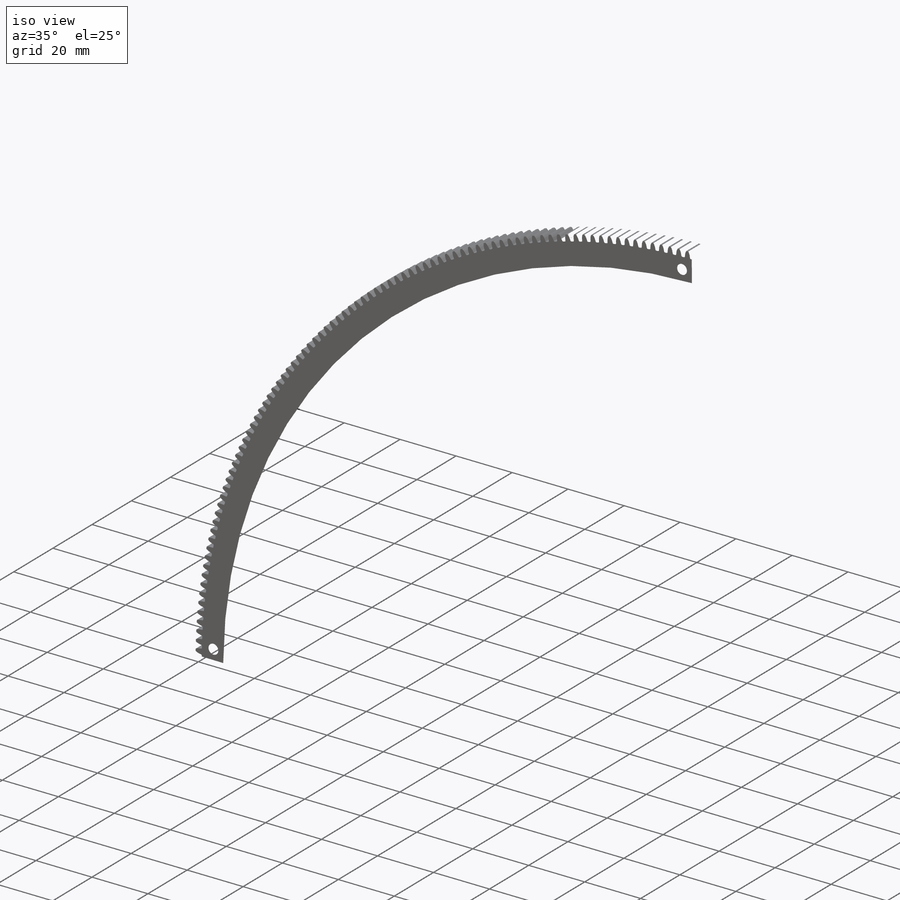
[diagram: iso view]
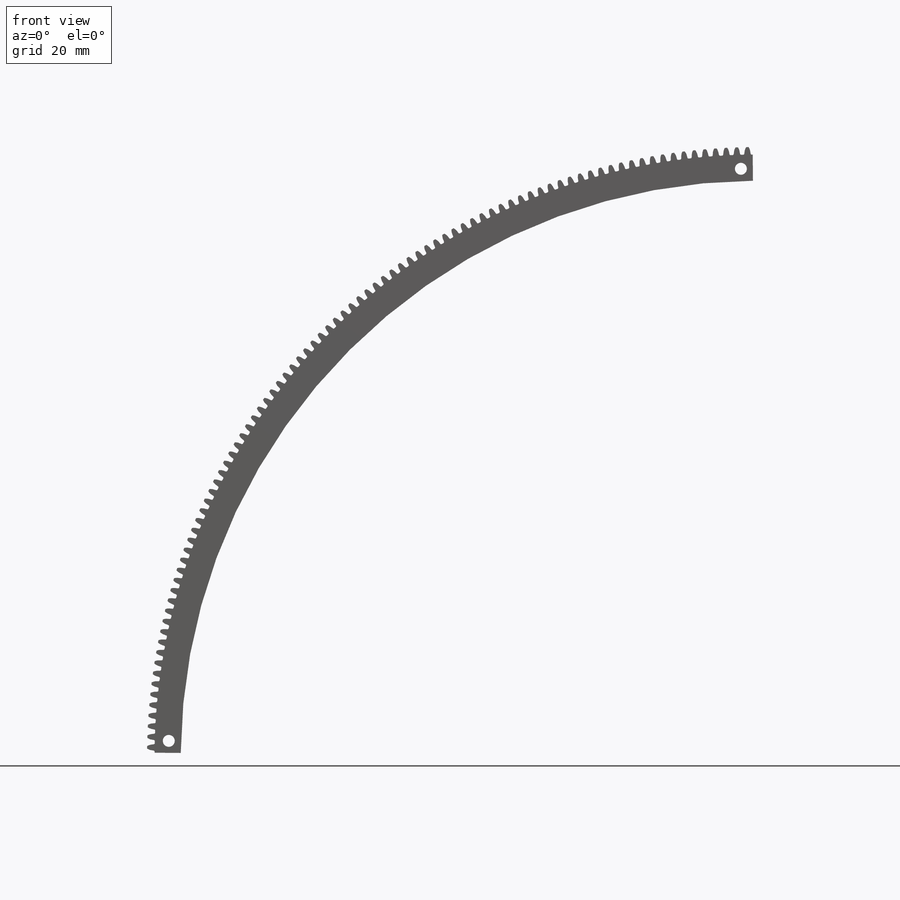
[diagram: front view]
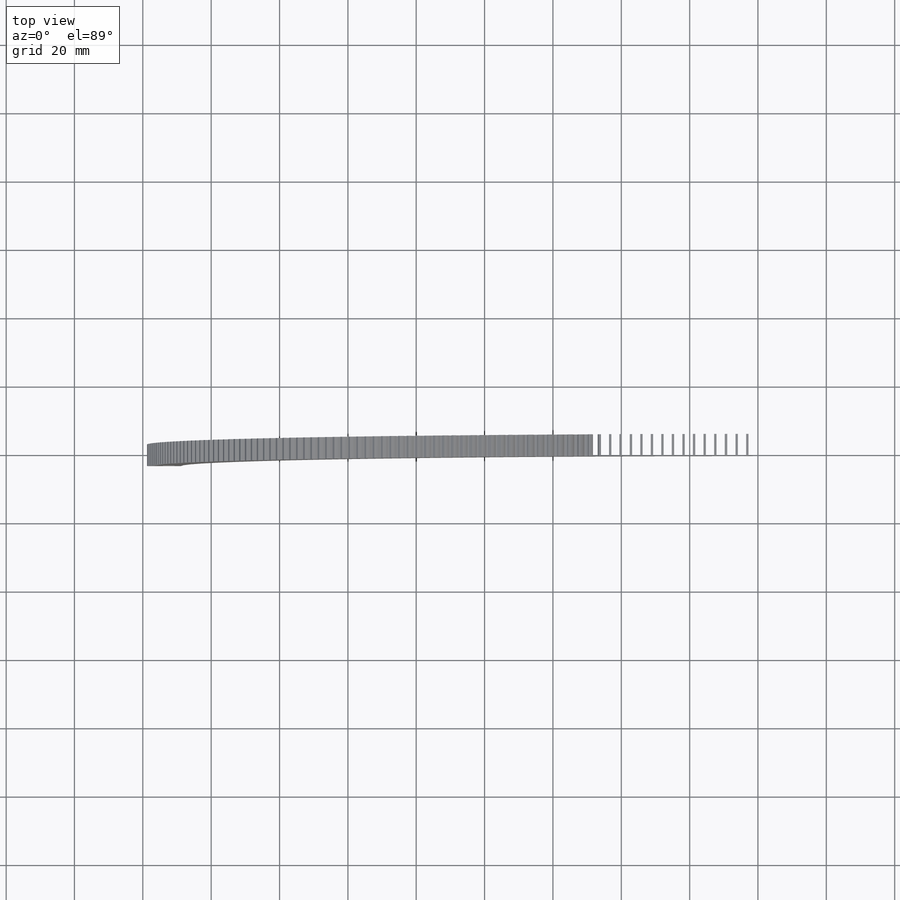
[diagram: top view]
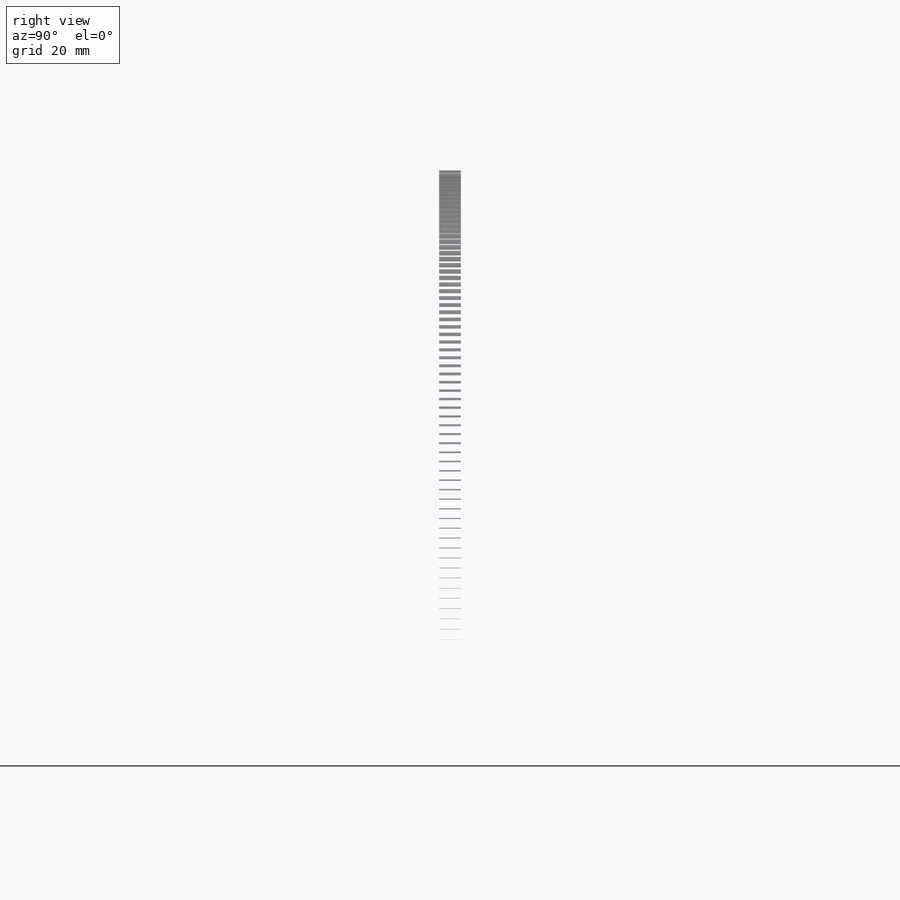
[diagram: right view]
SOLIDWORKS PART (.sldprt)
format: sldprt  version: not decoded by parser v0  size: 4,367,360 bytes
history: native  units: mm
features: sketch x9, cut_extrude x6, extrude x2, material x1, pattern_circular x1 + 1 further entry (+15 scaffold rows collapsed)
feature tree (35):
  scaffold x15  (default folders/planes/origin — collapsed)
  material  "Plain Carbon Steel"
  "Design Table"
  sketch  "Sketch1"  dims[D1=~55.208725mm D2=~11.938483mm]
  extrude  "BLANK DISK"  [1 undecoded]
  sketch  "Sketch2"  dims[c1.D1=~52.406303mm c1.D6=~23.868193mm c1.D16=~0.092603mm c1.D12=~3.103598mm c1.D2=~3.480618mm c1.D3=~17.453293mm c1.D4=~0.775899mm c1.D5=~0.775899mm c2.D6=~349.06585mm c2.D7=~349.06585mm c2.D8=~505.36051mm c3.D7=~349.06585mm c3.D8=~349.06585mm c3.D9=~1378.810109mm c3.D10=~1413.716694mm c3.D11=~1.551387mm c3.D12=~242.006635mm c3.D13=~492.027845mm c3.D14=~157.079633mm c3.D15=~157.079633mm c3.D17=~0.034316mm]
  cut_extrude  "GEAR TOOTH CUT"  [1 undecoded]
  pattern_circular  "GEAR TEETH REVOLVE"  [2 undecoded]
  sketch  "Sketch4"  dims[D1=7.62mm]
  extrude  "Extrude1"  Depth=0.0508mm
  sketch  "Sketch3"  dims[HEX_SIZE=9.525mm D1=8.89mm D2=2.662mm D3=1.331mm D4=1.619mm]
  cut_extrude  "HEX BORE CUT"  [1 undecoded]
  sketch  "Sketch5"  dims[c1.D1=~343.002507mm c1.D2=~1579.522973mm c1.D3=3150.3193mm c2.D1=168.91mm]
  sketch  "Sketch6"  dims[D1=152.4mm D2=152.4mm D3=152.4mm D4=152.4mm D5=12.7mm D6=~1570.796327mm D7=3.175mm]
  cut_extrude  "AlignmentMarkers"  [1 undecoded]
  sketch  "Sketch7"  dims[c1.D1=228.6mm c1.D2=12.7mm c2.D1=12.7mm]
  cut_extrude  "Screw Access Hole"  [1 undecoded]
  cut_extrude  "RackCut"  [1 undecoded]
  sketch  "Sketch11"  dims[D1=3.5mm D2=3.5mm D3=3.5mm D4=3.5mm D5=~2.987645mm D6=~3.077293mm]
  sketch  "Sketch12"  dims[D2=3.5mm D4=3.5mm D1=3.5mm D3=3.5mm D5=3.5mm D6=3.5mm]
  cut_extrude  "Cut-Extrude3"  [1 undecoded]
decode coverage: 10 of 18 modeling features carry decoded parameters; 1 rows unclassified (native names shown)
note: ~ marks probable driven/reference dimensions
note: 9 parameter values undecoded
summary: no parameter record found for 7 features
note: suppression state not decoded; provenance and decode notes live in map.json
